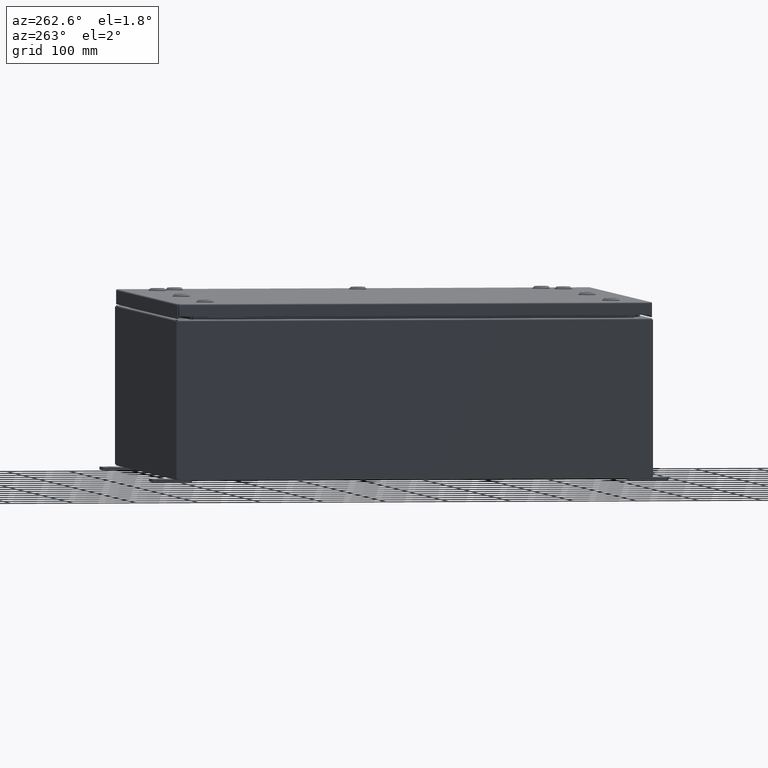
[diagram: clean part render]
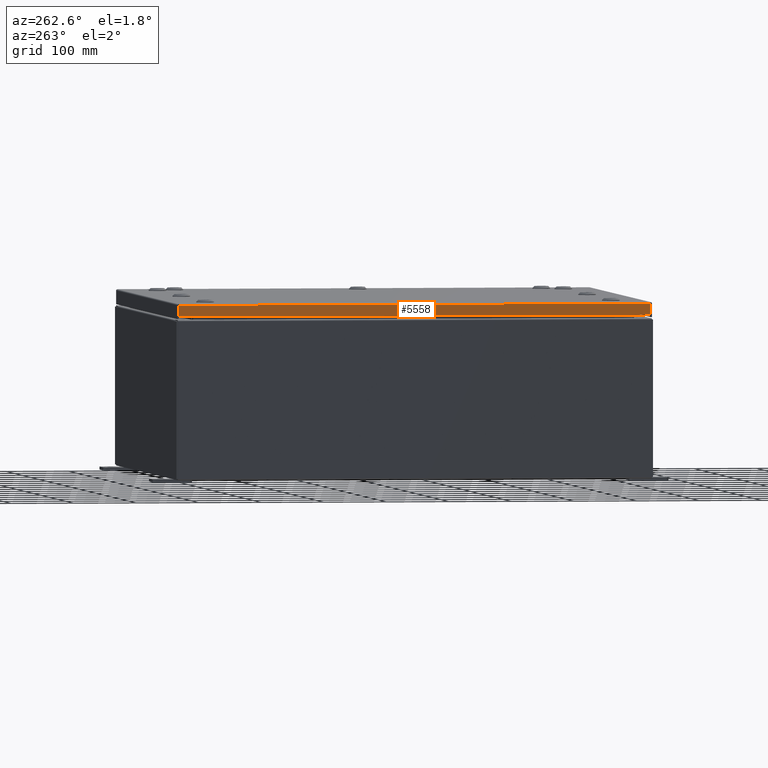
[diagram: same view with one face highlighted and labeled with its STEP entity id]
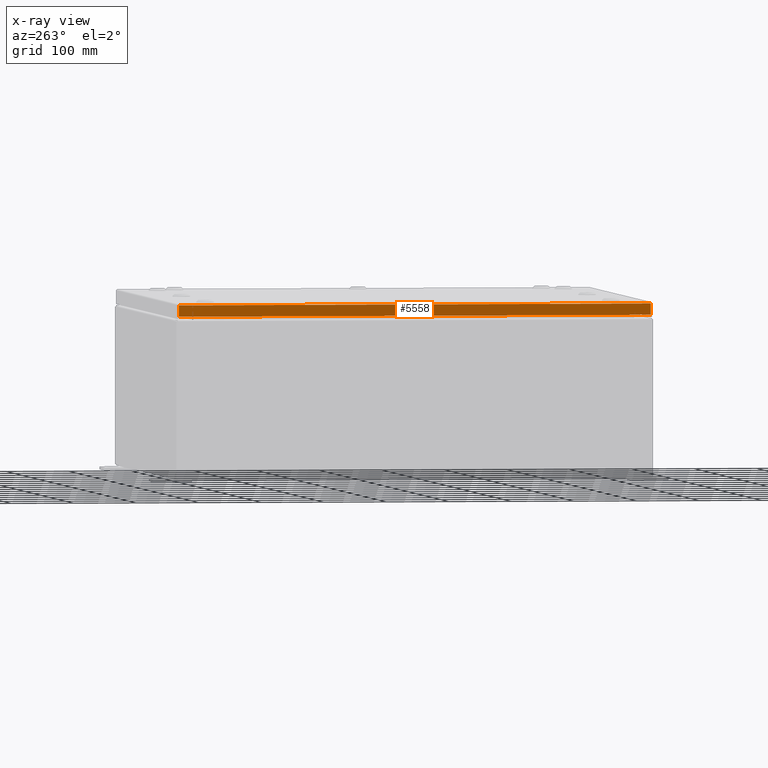
[diagram: x-ray of the same camera — body ghosted, the highlighted face saturated]
A machine part, auxiliary view. The second image highlights one B-rep face of the part: STEP entity #5558.
The next image is the same camera in x-ray: the body ghosted, the highlighted face saturated — about 0% of this face is hidden behind the body in this view.
In plain terms, the highlighted planar face has unit normal (1, 0, -0).
Its self-contained STEP definition (entity closure, byte-faithful):
#1383 = CARTESIAN_POINT ( 'NONE',  ( -14.93750000000000000, 14.84865786437627300, -0.7949999999999960400 ) ) ;
#5397 = CARTESIAN_POINT ( 'NONE',  ( -14.93750000000000000, -14.93749999999999800, -0.7949999999999997100 ) ) ;
#5558 = ADVANCED_FACE ( 'NONE', ( #37380 ), #40896, .F. ) ;
#10515 = EDGE_CURVE ( 'NONE', #33248, #13993, #44149, .T. ) ;
#11717 = CARTESIAN_POINT ( 'NONE',  ( -14.93749999999999800, -14.84865786437626400, -0.08770000000000007000 ) ) ;
#11996 = VERTEX_POINT ( 'NONE', #44469 ) ;
#12414 = VECTOR ( 'NONE', #24531, 39.37007874015748100 ) ;
#13993 = VERTEX_POINT ( 'NONE', #11717 ) ;
#15445 = DIRECTION ( 'NONE',  ( -3.034122441942816500E-015, 6.982962677686265900E-015, -1.000000000000000000 ) ) ;
#15953 = LINE ( 'NONE', #5397, #27856 ) ;
#16436 = EDGE_LOOP ( 'NONE', ( #44476, #24642, #45256, #61902 ) ) ;
#16711 = CARTESIAN_POINT ( 'NONE',  ( -14.93749999999999800, -14.84865786437626800, -0.07469999999999976700 ) ) ;
#17823 = EDGE_CURVE ( 'NONE', #13993, #11996, #37348, .T. ) ;
#20792 = DIRECTION ( 'NONE',  ( -3.034122441942816500E-015, 0.0000000000000000000, -1.000000000000000000 ) ) ;
#24531 = DIRECTION ( 'NONE',  ( -3.034122441942816500E-015, 6.982962677686265900E-015, -1.000000000000000000 ) ) ;
#24642 = ORIENTED_EDGE ( 'NONE', *, *, #65657, .T. ) ;
#25548 = VECTOR ( 'NONE', #15445, 39.37007874015748100 ) ;
#25856 = DIRECTION ( 'NONE',  ( 4.379057701015054300E-047, 1.000000000000000000, 1.234475243998914400E-016 ) ) ;
#25942 = VERTEX_POINT ( 'NONE', #1383 ) ;
#27856 = VECTOR ( 'NONE', #25856, 39.37007874015748100 ) ;
#32344 = VECTOR ( 'NONE', #38924, 39.37007874015748100 ) ;
#33248 = VERTEX_POINT ( 'NONE', #56190 ) ;
#36173 = LINE ( 'NONE', #44562, #12414 ) ;
#37348 = LINE ( 'NONE', #16711, #25548 ) ;
#37380 = FACE_OUTER_BOUND ( 'NONE', #16436, .T. ) ;
#38924 = DIRECTION ( 'NONE',  ( 3.745549041839940000E-031, -1.000000000000000000, -1.104117517615176400E-045 ) ) ;
#40896 = PLANE ( 'NONE',  #47932 ) ;
#43068 = DIRECTION ( 'NONE',  ( 1.000000000000000000, 3.745549041839939100E-031, -3.034122441942816500E-015 ) ) ;
#44149 = LINE ( 'NONE', #46121, #32344 ) ;
#44469 = CARTESIAN_POINT ( 'NONE',  ( -14.93750000000000000, -14.84865786437626200, -0.7949999999999996000 ) ) ;
#44476 = ORIENTED_EDGE ( 'NONE', *, *, #10515, .F. ) ;
#44562 = CARTESIAN_POINT ( 'NONE',  ( -14.93749999999999800, 14.84865786437626900, 1.492706413132045700E-013 ) ) ;
#45256 = ORIENTED_EDGE ( 'NONE', *, *, #48362, .F. ) ;
#46121 = CARTESIAN_POINT ( 'NONE',  ( -14.93749999999999800, -14.93749999999999800, -0.08770000000000004200 ) ) ;
#47932 = AXIS2_PLACEMENT_3D ( 'NONE', #59941, #43068, #20792 ) ;
#48362 = EDGE_CURVE ( 'NONE', #11996, #25942, #15953, .T. ) ;
#56190 = CARTESIAN_POINT ( 'NONE',  ( -14.93749999999999800, 14.84865786437626900, -0.08770000000000004200 ) ) ;
#59941 = CARTESIAN_POINT ( 'NONE',  ( -14.93749999999999800, -5.594913881248409300E-030, 4.558301763253239600E-014 ) ) ;
#61902 = ORIENTED_EDGE ( 'NONE', *, *, #17823, .F. ) ;
#65657 = EDGE_CURVE ( 'NONE', #33248, #25942, #36173, .T. ) ;